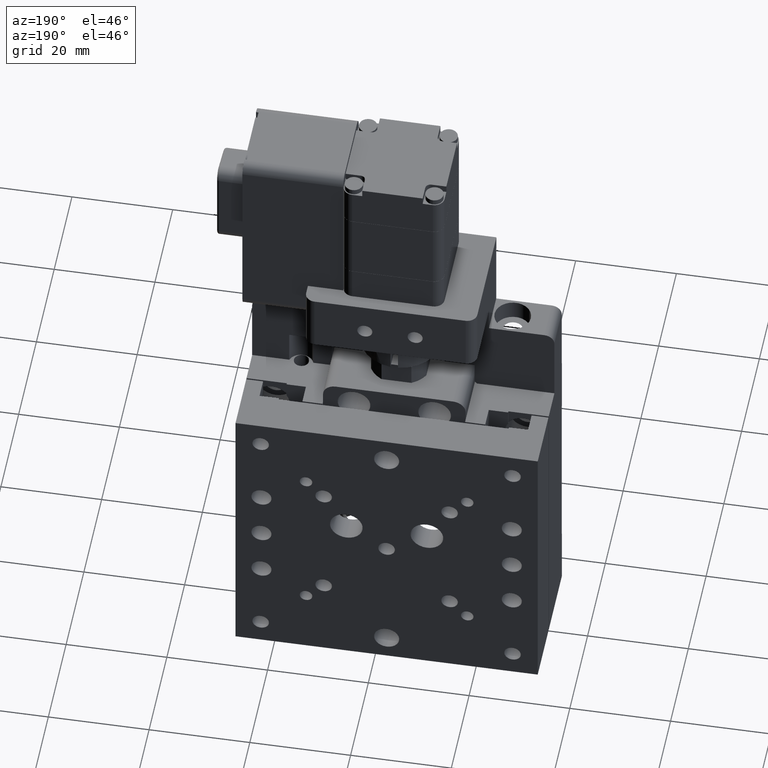
[diagram: clean part render]
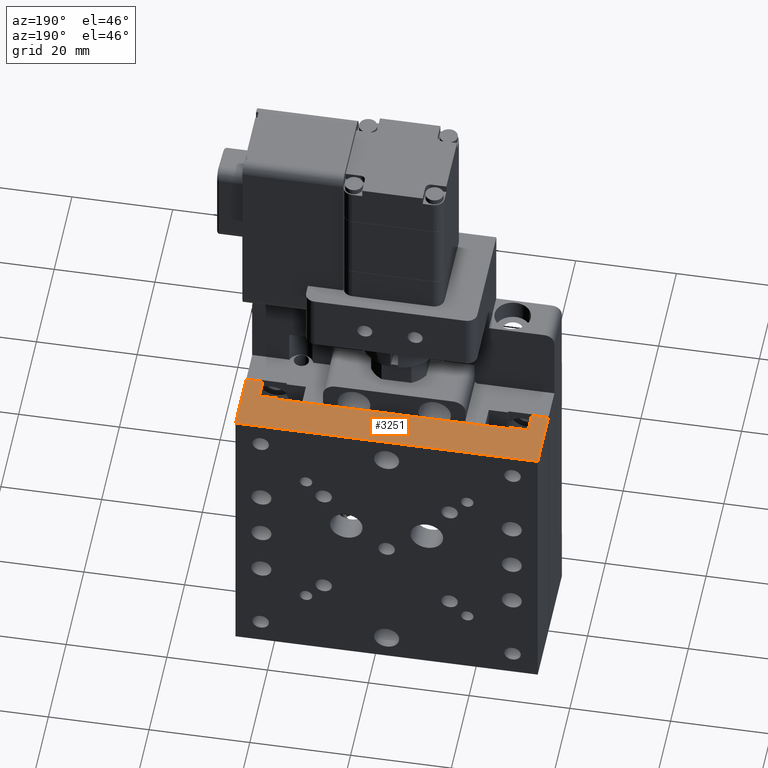
[diagram: same view with one face highlighted and labeled with its STEP entity id]
A machine part, auxiliary view. The second image highlights one B-rep face of the part: STEP entity #3251.
In plain terms, the highlighted planar face has unit normal (0, 0, 1).
Its self-contained STEP definition (entity closure, byte-faithful):
#129 = CARTESIAN_POINT ( 'NONE',  ( -25.44171959880753400, 6.001812454013954600, 92.50000000000000000 ) ) ;
#364 = VECTOR ( 'NONE', #17503, 1000.000000000000000 ) ;
#548 = CARTESIAN_POINT ( 'NONE',  ( 27.40828040119246000, 2.001812454013948400, 92.50000000000000000 ) ) ;
#850 = CARTESIAN_POINT ( 'NONE',  ( 20.25828040119247200, 6.001812454013959900, 92.50000000000000000 ) ) ;
#1104 = VERTEX_POINT ( 'NONE', #25629 ) ;
#1295 = EDGE_CURVE ( 'NONE', #15848, #2983, #7584, .T. ) ;
#1490 = VECTOR ( 'NONE', #5728, 1000.000000000000000 ) ;
#1554 = LINE ( 'NONE', #22580, #8363 ) ;
#2207 = VECTOR ( 'NONE', #28259, 1000.000000000000000 ) ;
#2283 = VECTOR ( 'NONE', #30160, 1000.000000000000000 ) ;
#2447 = VECTOR ( 'NONE', #30806, 1000.000000000000000 ) ;
#2983 = VERTEX_POINT ( 'NONE', #18551 ) ;
#3251 = ADVANCED_FACE ( 'NONE', ( #11118 ), #14526, .T. ) ;
#3564 = LINE ( 'NONE', #19432, #29216 ) ;
#3641 = ORIENTED_EDGE ( 'NONE', *, *, #20521, .T. ) ;
#3834 = EDGE_CURVE ( 'NONE', #31397, #15848, #22211, .T. ) ;
#4224 = CARTESIAN_POINT ( 'NONE',  ( -29.24171959880753100, 2.001812454013710800, 92.50000000000000000 ) ) ;
#4339 = VECTOR ( 'NONE', #14600, 1000.000000000000000 ) ;
#4721 = CARTESIAN_POINT ( 'NONE',  ( 27.40828040119247100, 14.10181245401396100, 92.50000000000000000 ) ) ;
#5115 = VERTEX_POINT ( 'NONE', #10430 ) ;
#5378 = VERTEX_POINT ( 'NONE', #21811 ) ;
#5540 = VERTEX_POINT ( 'NONE', #17587 ) ;
#5728 = DIRECTION ( 'NONE',  ( 8.601934591620520800E-016, 1.000000000000000000, 0.0000000000000000000 ) ) ;
#5972 = VECTOR ( 'NONE', #6025, 1000.000000000000000 ) ;
#6025 = DIRECTION ( 'NONE',  ( 8.601934591620527700E-016, -1.000000000000000000, 0.0000000000000000000 ) ) ;
#6306 = ORIENTED_EDGE ( 'NONE', *, *, #29224, .T. ) ;
#6516 = ORIENTED_EDGE ( 'NONE', *, *, #9763, .T. ) ;
#6605 = CARTESIAN_POINT ( 'NONE',  ( 24.05828040119246900, 2.001812454013717000, 92.50000000000000000 ) ) ;
#6655 = ORIENTED_EDGE ( 'NONE', *, *, #27156, .T. ) ;
#6667 = DIRECTION ( 'NONE',  ( 1.000000000000000000, -7.093092611529905600E-014, -0.0000000000000000000 ) ) ;
#7143 = CARTESIAN_POINT ( 'NONE',  ( 20.25828040119247200, 6.001812454013959900, 92.50000000000000000 ) ) ;
#7464 = VERTEX_POINT ( 'NONE', #7648 ) ;
#7494 = EDGE_CURVE ( 'NONE', #5378, #5115, #22068, .T. ) ;
#7584 = LINE ( 'NONE', #8601, #5972 ) ;
#7648 = CARTESIAN_POINT ( 'NONE',  ( 24.05828040119246900, 6.001812454013961700, 92.50000000000000000 ) ) ;
#8363 = VECTOR ( 'NONE', #9827, 1000.000000000000000 ) ;
#8404 = VERTEX_POINT ( 'NONE', #850 ) ;
#8601 = CARTESIAN_POINT ( 'NONE',  ( -32.59171959880753600, 14.10181245401395400, 92.50000000000000000 ) ) ;
#9098 = LINE ( 'NONE', #7143, #2283 ) ;
#9763 = EDGE_CURVE ( 'NONE', #27052, #1104, #26587, .T. ) ;
#9827 = DIRECTION ( 'NONE',  ( 1.000000000000000000, 4.565061778886337000E-016, -0.0000000000000000000 ) ) ;
#10430 = CARTESIAN_POINT ( 'NONE',  ( -25.44171959880753400, 6.001812454013954600, 92.50000000000000000 ) ) ;
#11071 = AXIS2_PLACEMENT_3D ( 'NONE', #14641, #32498, #17183 ) ;
#11118 = FACE_OUTER_BOUND ( 'NONE', #15139, .T. ) ;
#11198 = LINE ( 'NONE', #4224, #4339 ) ;
#12089 = EDGE_CURVE ( 'NONE', #1104, #8404, #9098, .T. ) ;
#12788 = CARTESIAN_POINT ( 'NONE',  ( 20.25828040119247200, 6.301812454013954400, 92.50000000000000000 ) ) ;
#13299 = EDGE_CURVE ( 'NONE', #24543, #17871, #30918, .T. ) ;
#13874 = ORIENTED_EDGE ( 'NONE', *, *, #7494, .T. ) ;
#14526 = PLANE ( 'NONE',  #11071 ) ;
#14600 = DIRECTION ( 'NONE',  ( 0.0000000000000000000, 1.000000000000000000, 0.0000000000000000000 ) ) ;
#14641 = CARTESIAN_POINT ( 'NONE',  ( -32.59171959880752200, 6.001812454013937700, 92.50000000000000000 ) ) ;
#15139 = EDGE_LOOP ( 'NONE', ( #3641, #17929, #26764, #20741, #25485, #19708, #28720, #6306, #13874, #6655, #6516, #18257 ) ) ;
#15583 = EDGE_CURVE ( 'NONE', #7464, #24543, #27650, .T. ) ;
#15664 = CARTESIAN_POINT ( 'NONE',  ( -29.24171959880753100, 6.001812454013954600, 92.50000000000000000 ) ) ;
#15848 = VERTEX_POINT ( 'NONE', #16155 ) ;
#16155 = CARTESIAN_POINT ( 'NONE',  ( -32.59171959880753600, 14.10181245401395400, 92.50000000000000000 ) ) ;
#17183 = DIRECTION ( 'NONE',  ( 1.000000000000000000, 0.0000000000000000000, -0.0000000000000000000 ) ) ;
#17344 = VECTOR ( 'NONE', #32214, 1000.000000000000000 ) ;
#17503 = DIRECTION ( 'NONE',  ( -0.0000000000000000000, -1.000000000000000000, -0.0000000000000000000 ) ) ;
#17567 = EDGE_CURVE ( 'NONE', #2983, #5540, #3564, .T. ) ;
#17587 = CARTESIAN_POINT ( 'NONE',  ( -29.24171959880753100, 2.001812454013710800, 92.50000000000000000 ) ) ;
#17664 = CARTESIAN_POINT ( 'NONE',  ( -25.44171959880753400, 6.301812454013949100, 92.50000000000000000 ) ) ;
#17871 = VERTEX_POINT ( 'NONE', #23884 ) ;
#17929 = ORIENTED_EDGE ( 'NONE', *, *, #15583, .T. ) ;
#18257 = ORIENTED_EDGE ( 'NONE', *, *, #12089, .T. ) ;
#18378 = CARTESIAN_POINT ( 'NONE',  ( 24.05828040119246900, 2.001812454013717000, 92.50000000000000000 ) ) ;
#18551 = CARTESIAN_POINT ( 'NONE',  ( -32.59171959880752200, 2.001812454013948400, 92.50000000000000000 ) ) ;
#19432 = CARTESIAN_POINT ( 'NONE',  ( -29.24171959880753100, 2.001812454013710800, 92.50000000000000000 ) ) ;
#19708 = ORIENTED_EDGE ( 'NONE', *, *, #1295, .T. ) ;
#19814 = VECTOR ( 'NONE', #23023, 1000.000000000000000 ) ;
#20521 = EDGE_CURVE ( 'NONE', #8404, #7464, #1554, .T. ) ;
#20741 = ORIENTED_EDGE ( 'NONE', *, *, #21281, .T. ) ;
#20809 = CARTESIAN_POINT ( 'NONE',  ( 27.40828040119247100, 14.10181245401396100, 92.50000000000000000 ) ) ;
#21281 = EDGE_CURVE ( 'NONE', #17871, #31397, #28715, .T. ) ;
#21394 = VECTOR ( 'NONE', #28531, 1000.000000000000000 ) ;
#21811 = CARTESIAN_POINT ( 'NONE',  ( -29.24171959880753100, 6.001812454013954600, 92.50000000000000000 ) ) ;
#22068 = LINE ( 'NONE', #15664, #2447 ) ;
#22211 = LINE ( 'NONE', #20809, #21394 ) ;
#22580 = CARTESIAN_POINT ( 'NONE',  ( 24.05828040119246900, 6.001812454013961700, 92.50000000000000000 ) ) ;
#22634 = LINE ( 'NONE', #129, #2207 ) ;
#23023 = DIRECTION ( 'NONE',  ( 1.000000000000000000, 1.138768146155453300E-016, -0.0000000000000000000 ) ) ;
#23884 = CARTESIAN_POINT ( 'NONE',  ( 27.40828040119246000, 2.001812454013948400, 92.50000000000000000 ) ) ;
#24543 = VERTEX_POINT ( 'NONE', #18378 ) ;
#25485 = ORIENTED_EDGE ( 'NONE', *, *, #3834, .T. ) ;
#25629 = CARTESIAN_POINT ( 'NONE',  ( 20.25828040119247200, 6.301812454013954400, 92.50000000000000000 ) ) ;
#26587 = LINE ( 'NONE', #12788, #19814 ) ;
#26764 = ORIENTED_EDGE ( 'NONE', *, *, #13299, .T. ) ;
#27052 = VERTEX_POINT ( 'NONE', #17664 ) ;
#27156 = EDGE_CURVE ( 'NONE', #5115, #27052, #22634, .T. ) ;
#27650 = LINE ( 'NONE', #30116, #364 ) ;
#28259 = DIRECTION ( 'NONE',  ( 0.0000000000000000000, 1.000000000000000000, 0.0000000000000000000 ) ) ;
#28531 = DIRECTION ( 'NONE',  ( -1.000000000000000000, -1.156482317317871500E-016, 0.0000000000000000000 ) ) ;
#28715 = LINE ( 'NONE', #548, #1490 ) ;
#28720 = ORIENTED_EDGE ( 'NONE', *, *, #17567, .T. ) ;
#29216 = VECTOR ( 'NONE', #6667, 1000.000000000000000 ) ;
#29224 = EDGE_CURVE ( 'NONE', #5540, #5378, #11198, .T. ) ;
#30116 = CARTESIAN_POINT ( 'NONE',  ( 24.05828040119246900, 2.001812454013717000, 92.50000000000000000 ) ) ;
#30160 = DIRECTION ( 'NONE',  ( -0.0000000000000000000, -1.000000000000000000, -0.0000000000000000000 ) ) ;
#30806 = DIRECTION ( 'NONE',  ( 1.000000000000000000, 0.0000000000000000000, 0.0000000000000000000 ) ) ;
#30918 = LINE ( 'NONE', #6605, #17344 ) ;
#31397 = VERTEX_POINT ( 'NONE', #4721 ) ;
#32214 = DIRECTION ( 'NONE',  ( 1.000000000000000000, 6.898245822292431600E-014, 0.0000000000000000000 ) ) ;
#32498 = DIRECTION ( 'NONE',  ( 0.0000000000000000000, 0.0000000000000000000, 1.000000000000000000 ) ) ;